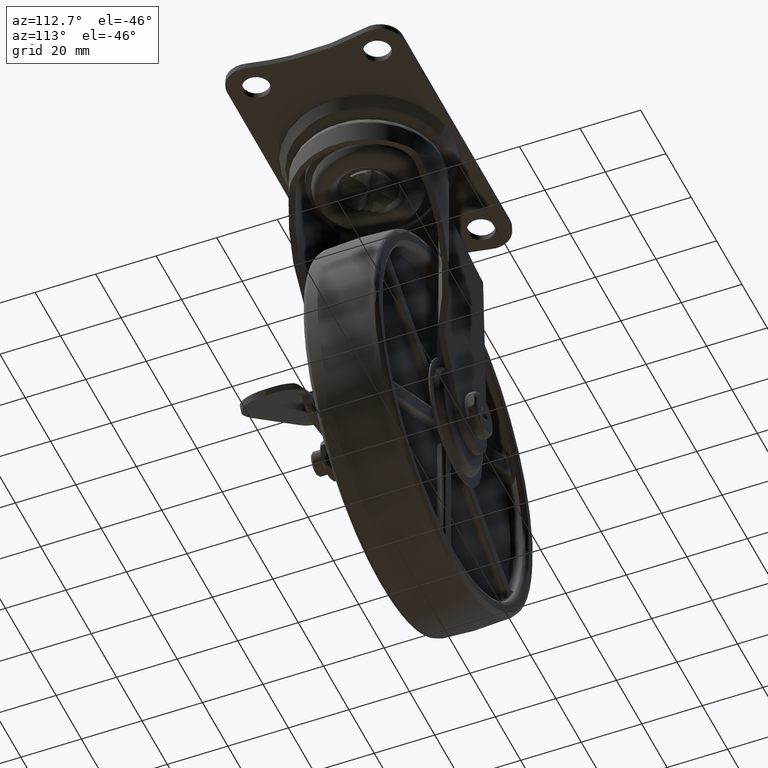
[diagram: clean part render]
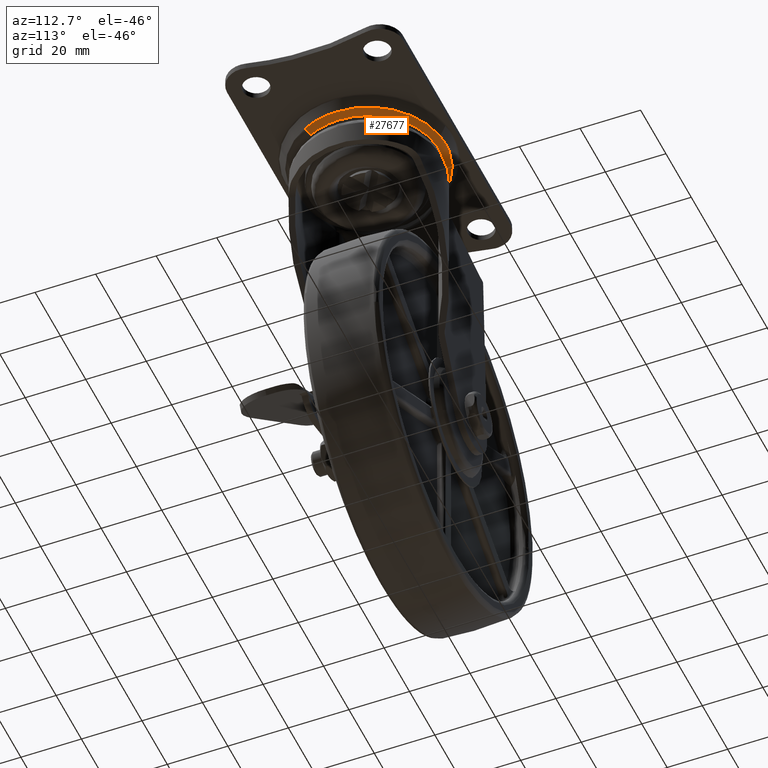
[diagram: same view with one face highlighted and labeled with its STEP entity id]
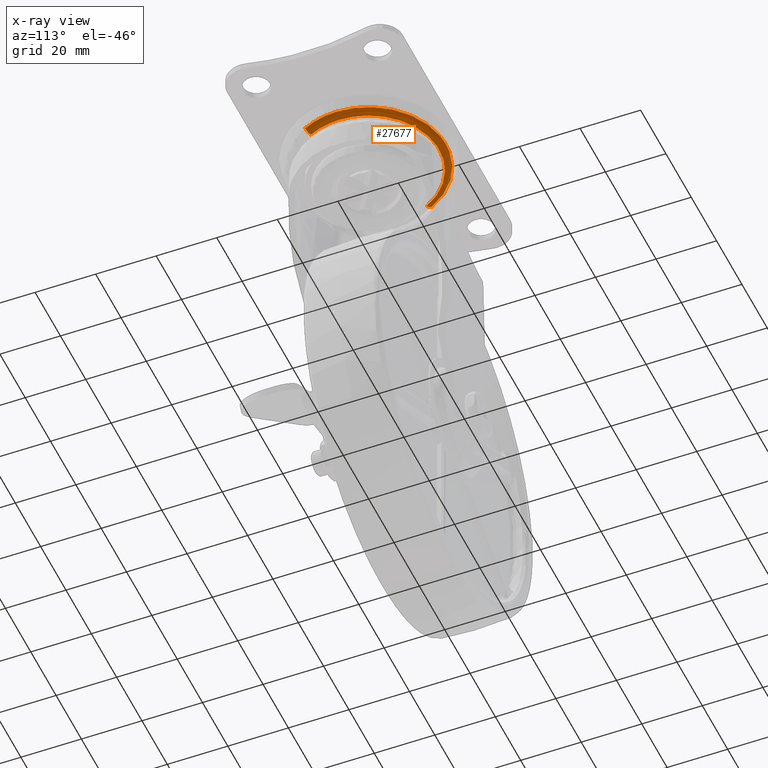
[diagram: x-ray of the same camera — body ghosted, the highlighted face saturated]
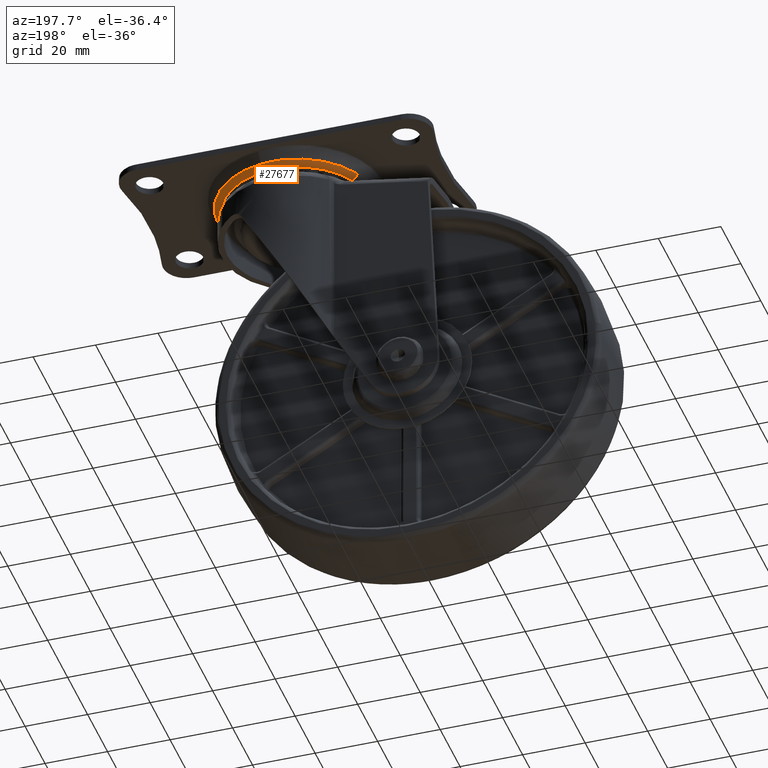
[diagram: same view with one face highlighted and labeled with its STEP entity id]
A machine part, auxiliary view. The second image highlights one B-rep face of the part: STEP entity #27677.
The next image is the same camera in x-ray: the body ghosted, the highlighted face saturated — about 6% of this face is hidden behind the body in this view.
A second angle (auxiliary view) of the same face is appended — the face is thin or edge-on in the first view.
In plain terms, the highlighted face is a freeform B-spline surface patch.
Its self-contained STEP definition (entity closure, byte-faithful):
#27445=CARTESIAN_POINT('',(-20.781810514564651,10.424908472774570,-5.200001000000022));
#27446=VERTEX_POINT('',#27445);
#27455=CARTESIAN_POINT('',(23.249997058209200,-1.421085E-014,-5.200001000000000));
#27456=VERTEX_POINT('',#27455);
#27457=CARTESIAN_POINT('',(-20.781810514564651,10.424908472774570,-5.200001000000022));
#27458=CARTESIAN_POINT('',(-19.765327933310541,12.453383311881989,-5.200001000000015));
#27459=CARTESIAN_POINT('',(-17.413664394454258,15.805919352566510,-5.200001000000028));
#27460=CARTESIAN_POINT('',(-13.351797714618931,19.213441553126291,-5.200001000000020));
#27461=CARTESIAN_POINT('',(-9.367314704682750,21.414140546404859,-5.200001000000010));
#27462=CARTESIAN_POINT('',(-5.819856196714084,22.616971788659090,-5.200001000000023));
#27463=CARTESIAN_POINT('',(-2.135629476962715,23.229670605794560,-5.200001000000011));
#27464=CARTESIAN_POINT('',(1.358450180831003,23.312513818161300,-5.200001000000015));
#27465=CARTESIAN_POINT('',(4.740954888196638,22.841375922235990,-5.200001000000012));
#27466=CARTESIAN_POINT('',(8.095564763915595,21.878445543240630,-5.200001000000005));
#27467=CARTESIAN_POINT('',(11.584226422620720,20.317918673311450,-5.200001000000042));
#27468=CARTESIAN_POINT('',(14.925874241928099,17.987927310084210,-5.200000999999927));
#27469=CARTESIAN_POINT('',(17.622594214191480,15.284201528715601,-5.200000999999981));
#27470=CARTESIAN_POINT('',(20.009253767615519,12.099454050987870,-5.200001000000013));
#27471=CARTESIAN_POINT('',(21.638869093771788,8.810570338905066,-5.200001000000000));
#27472=CARTESIAN_POINT('',(22.926608791115999,4.537519052913194,-5.200000999999952));
#27473=CARTESIAN_POINT('',(23.250517162116200,1.863775546488956,-5.200001000000190));
#27474=CARTESIAN_POINT('',(23.249997058209200,-1.421085E-014,-5.200001000000000));
#27475=B_SPLINE_CURVE_WITH_KNOTS('',3,(#27457,#27458,#27459,#27460,#27461,#27462,#27463,#27464,#27465,#27466,#27467,#27468,#27469,#27470,#27471,#27472,#27473,#27474),.UNSPECIFIED.,.F.,.U.,(4,1,1,1,1,1,1,1,1,1,1,1,1,1,1,4),(0.000000362191962,6.806540808555702,12.154668646252770,15.801121347403161,20.419965175950232,23.337086086292700,26.983519012093652,30.873024493057681,33.546870995230179,37.436469407325049,42.298320060233117,45.701685327848253,48.861918749933643,54.210007452264939,56.640926292013660,62.232084478740347),.UNSPECIFIED.);
#27476=EDGE_CURVE('',#27446,#27456,#27475,.T.);
#27478=CARTESIAN_POINT('',(20.781810514564651,-10.424908472774590,-5.200001000000022));
#27479=VERTEX_POINT('',#27478);
#27480=CARTESIAN_POINT('',(23.249997058209200,-1.421085E-014,-5.200001000000000));
#27481=CARTESIAN_POINT('',(23.250342554458872,-1.745443268712525,-5.200000999999998));
#27482=CARTESIAN_POINT('',(22.842181296120380,-5.348651720599857,-5.200000999999999));
#27483=CARTESIAN_POINT('',(21.615341169778649,-8.764330514536308,-5.200001000000039));
#27484=CARTESIAN_POINT('',(20.781810514564651,-10.424908472774590,-5.200001000000022));
#27485=B_SPLINE_CURVE_WITH_KNOTS('',3,(#27480,#27481,#27482,#27483,#27484),.UNSPECIFIED.,.F.,.U.,(4,1,4),(0.000000017211494,5.236240828192027,10.810242735575510),.UNSPECIFIED.);
#27486=EDGE_CURVE('',#27456,#27479,#27485,.T.);
#27542=CARTESIAN_POINT('',(22.770127073843579,-11.422320036058100,-3.840951160500851));
#27543=VERTEX_POINT('',#27542);
#27544=CARTESIAN_POINT('',(22.770127073843579,-11.422320036058100,-3.840951160500851));
#27545=CARTESIAN_POINT('',(22.653744639413219,-11.363938393947880,-4.095231822948548));
#27546=CARTESIAN_POINT('',(22.388617004547800,-11.230940774727070,-4.488657810899318));
#27547=CARTESIAN_POINT('',(21.870689695610391,-10.971129687592510,-4.914837232199976));
#27548=CARTESIAN_POINT('',(21.343519966345660,-10.706682267789480,-5.148370084376709));
#27549=CARTESIAN_POINT('',(20.960534508865759,-10.514562898167251,-5.200030541266727));
#27550=CARTESIAN_POINT('',(20.781810514564651,-10.424908472774590,-5.200001000000022));
#27551=B_SPLINE_CURVE_WITH_KNOTS('',3,(#27544,#27545,#27546,#27547,#27548,#27549,#27550),.UNSPECIFIED.,.F.,.U.,(4,1,1,1,4),(0.000000226648377,0.856990596946506,1.456832565687963,2.142439187449938,2.742318445480481),.UNSPECIFIED.);
#27552=EDGE_CURVE('',#27543,#27479,#27551,.T.);
#27586=CARTESIAN_POINT('',(-22.770127073843579,11.422320036058080,-3.840951160500851));
#27587=VERTEX_POINT('',#27586);
#27596=CARTESIAN_POINT('',(-22.770127073843579,11.422320036058080,-3.840951160500851));
#27597=CARTESIAN_POINT('',(-22.642163207567769,11.358128728490801,-4.120698878281749));
#27598=CARTESIAN_POINT('',(-22.338133466243029,11.205616404416251,-4.555914423990204));
#27599=CARTESIAN_POINT('',(-21.649516125997959,10.860181018581070,-5.063830251496873));
#27600=CARTESIAN_POINT('',(-21.113828953012138,10.591460940646639,-5.200510021920292));
#27601=CARTESIAN_POINT('',(-20.781810514564651,10.424908472774570,-5.200001000000022));
#27602=B_SPLINE_CURVE_WITH_KNOTS('',3,(#27596,#27597,#27598,#27599,#27600,#27601),.UNSPECIFIED.,.F.,.U.,(4,1,1,4),(0.000000226648023,0.942697359688828,1.628213001398995,2.742318445480480),.UNSPECIFIED.);
#27603=EDGE_CURVE('',#27587,#27446,#27602,.T.);
#27609=CARTESIAN_POINT('',(-22.820140674464273,11.447408668667448,-3.724551310975114));
#27610=CARTESIAN_POINT('',(-11.372732005796809,34.267549343131712,-3.724551310975115));
#27611=CARTESIAN_POINT('',(11.447408668667460,22.820140674464263,-3.724551310975114));
#27612=CARTESIAN_POINT('',(34.267549343131726,11.372732005796799,-3.724551310975115));
#27613=CARTESIAN_POINT('',(22.820140674464273,-11.447408668667471,-3.724551310975114));
#27614=CARTESIAN_POINT('',(-22.193443499311222,11.133034678698834,-5.285102538578096));
#27615=CARTESIAN_POINT('',(-11.060408820612377,33.326478178010063,-5.285102538578095));
#27616=CARTESIAN_POINT('',(11.133034678698849,22.193443499311208,-5.285102538578096));
#27617=CARTESIAN_POINT('',(33.326478178010085,11.060408820612365,-5.285102538578095));
#27618=CARTESIAN_POINT('',(22.193443499311222,-11.133034678698861,-5.285102538578096));
#27619=CARTESIAN_POINT('',(-20.666287749188374,10.366958070243742,-5.196658015110471));
#27620=CARTESIAN_POINT('',(-10.299329678944614,31.033245819432118,-5.196658015110470));
#27621=CARTESIAN_POINT('',(10.366958070243754,20.666287749188360,-5.196658015110471));
#27622=CARTESIAN_POINT('',(31.033245819432118,10.299329678944604,-5.196658015110470));
#27623=CARTESIAN_POINT('',(20.666287749188381,-10.366958070243768,-5.196658015110471));
#27631=(BOUNDED_SURFACE()B_SPLINE_SURFACE(2,2,((#27609,#27614,#27619),(#27610,#27615,#27620),(#27611,#27616,#27621),(#27612,#27617,#27622),(#27613,#27618,#27623)),.UNSPECIFIED.,.F.,.F.,.U.)B_SPLINE_SURFACE_WITH_KNOTS((3,2,3),(3,3),(0.0,42.300173195040422,84.600346390080830),(0.0,3.094073681823660),.UNSPECIFIED.)GEOMETRIC_REPRESENTATION_ITEM()RATIONAL_B_SPLINE_SURFACE(((0.920895815819466,0.759563909034308,0.919886291984493),(0.651171676132263,0.537092790822721,0.650457834982783),(0.920895815819466,0.759563909034308,0.919886291984493),(0.651171676132263,0.537092790822721,0.650457834982783),(0.920895815819466,0.759563909034308,0.919886291984493)))REPRESENTATION_ITEM('')SURFACE());
#27632=ORIENTED_EDGE('',*,*,#27486,.F.);
#27633=ORIENTED_EDGE('',*,*,#27476,.F.);
#27634=ORIENTED_EDGE('',*,*,#27603,.F.);
#27635=CARTESIAN_POINT('',(3.765364843487860,25.194644462044071,-3.840951160272378));
#27636=VERTEX_POINT('',#27635);
#27637=CARTESIAN_POINT('',(-22.770127073843579,11.422320036058080,-3.840951160500851));
#27638=CARTESIAN_POINT('',(-21.949640518313810,13.058607515274071,-3.840951160495560));
#27639=CARTESIAN_POINT('',(-19.953729053142631,16.152991741012929,-3.840951160481385));
#27640=CARTESIAN_POINT('',(-16.333692801028299,19.752364989234810,-3.840951160452736));
#27641=CARTESIAN_POINT('',(-12.729300398142041,22.172691584410732,-3.840951160422502));
#27642=CARTESIAN_POINT('',(-8.965737104663129,23.965130923979540,-3.840951160389858));
#27643=CARTESIAN_POINT('',(-5.031949936281681,25.108239171099850,-3.840951160354676));
#27644=CARTESIAN_POINT('',(-0.550585642238441,25.586661555863870,-3.840951160313390));
#27645=CARTESIAN_POINT('',(2.284186976554298,25.416150464263058,-3.840951160286577));
#27646=CARTESIAN_POINT('',(3.765364843487860,25.194644462044071,-3.840951160272378));
#27647=B_SPLINE_CURVE_WITH_KNOTS('',3,(#27637,#27638,#27639,#27640,#27641,#27642,#27643,#27644,#27645,#27646),.UNSPECIFIED.,.F.,.U.,(4,1,1,1,1,1,1,4),(0.000000127028986,5.491384789328407,10.982832797580301,15.226248491492569,18.471054461066721,23.463299114823020,27.457095929000531,31.950031767590730),.UNSPECIFIED.);
#27648=EDGE_CURVE('',#27587,#27636,#27647,.T.);
#27649=ORIENTED_EDGE('',*,*,#27648,.T.);
#27650=CARTESIAN_POINT('',(25.474459405002900,-1.421085E-014,-3.840951160040765));
#27651=VERTEX_POINT('',#27650);
#27652=CARTESIAN_POINT('',(3.765364843487860,25.194644462044071,-3.840951160272378));
#27653=CARTESIAN_POINT('',(6.005421528757525,24.860649107814769,-3.840951160251677));
#27654=CARTESIAN_POINT('',(9.754571173850527,23.774280023946510,-3.840951160216291));
#27655=CARTESIAN_POINT('',(14.222818654584829,21.277554921640199,-3.840951160172414));
#27656=CARTESIAN_POINT('',(17.543403127281071,18.612976316036331,-3.840951160138676));
#27657=CARTESIAN_POINT('',(20.094625603659459,15.813365990322570,-3.840951160111629));
#27658=CARTESIAN_POINT('',(22.353733267132998,12.431858244622140,-3.840951160086563));
#27659=CARTESIAN_POINT('',(23.865646341292639,9.164686683810123,-3.840951160068189));
#27660=CARTESIAN_POINT('',(25.131270208434039,4.906749699160753,-3.840951160050810));
#27661=CARTESIAN_POINT('',(25.474925688523822,1.981709532678526,-3.840951160043586));
#27662=CARTESIAN_POINT('',(25.474459405002900,-1.421085E-014,-3.840951160040765));
#27663=B_SPLINE_CURVE_WITH_KNOTS('',3,(#27652,#27653,#27654,#27655,#27656,#27657,#27658,#27659,#27660,#27661,#27662),.UNSPECIFIED.,.F.,.U.,(4,1,1,1,1,1,1,1,4),(0.000000113851151,6.794257405441542,11.606900034829639,15.287179250306510,19.533482743511300,22.930658693664959,27.460219341470900,30.291181779860469,36.236161578783552),.UNSPECIFIED.);
#27664=EDGE_CURVE('',#27636,#27651,#27663,.T.);
#27665=ORIENTED_EDGE('',*,*,#27664,.T.);
#27666=CARTESIAN_POINT('',(25.474459405002900,-1.421085E-014,-3.840951160040765));
#27667=CARTESIAN_POINT('',(25.474612040462549,-1.603948077854478,-3.840951160101946));
#27668=CARTESIAN_POINT('',(25.100403512711139,-5.552092689450769,-3.840951160255903));
#27669=CARTESIAN_POINT('',(23.822155600389038,-9.327282539234698,-3.840951160411454));
#27670=CARTESIAN_POINT('',(22.770127073843579,-11.422320036058100,-3.840951160500851));
#27671=B_SPLINE_CURVE_WITH_KNOTS('',3,(#27666,#27667,#27668,#27669,#27670),.UNSPECIFIED.,.F.,.U.,(4,1,4),(0.000000016732985,4.811854779256189,11.844521476167159),.UNSPECIFIED.);
#27672=EDGE_CURVE('',#27651,#27543,#27671,.T.);
#27673=ORIENTED_EDGE('',*,*,#27672,.T.);
#27674=ORIENTED_EDGE('',*,*,#27552,.T.);
#27675=EDGE_LOOP('',(#27632,#27633,#27634,#27649,#27665,#27673,#27674));
#27676=FACE_OUTER_BOUND('',#27675,.T.);
#27677=ADVANCED_FACE('',(#27676),#27631,.T.);